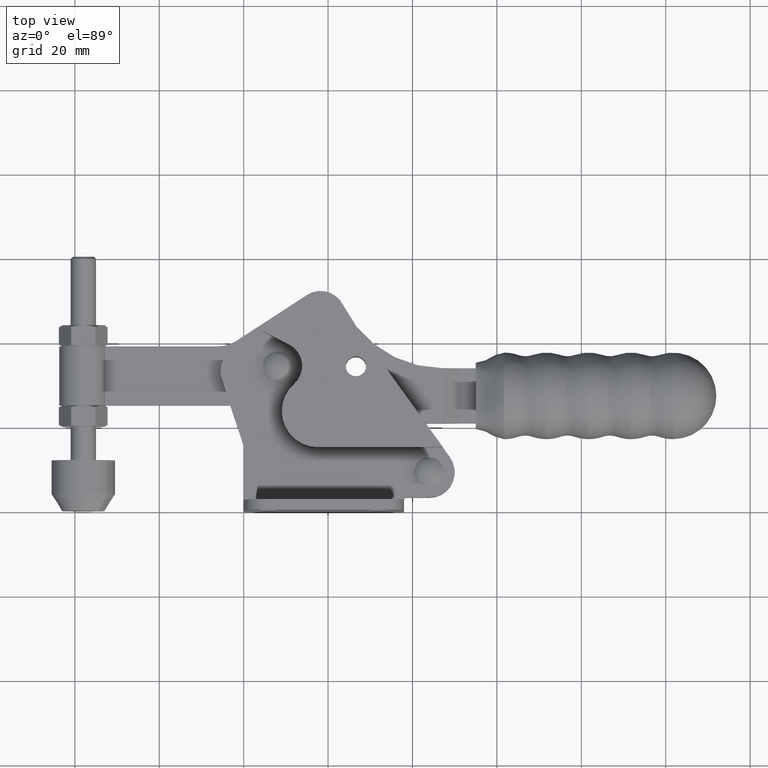
[diagram: clean part render]
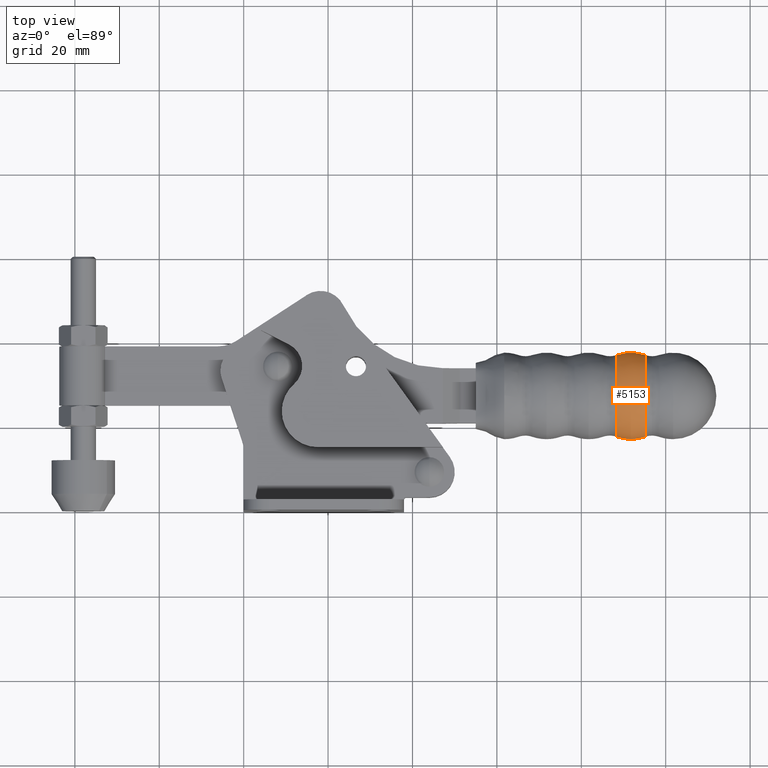
[diagram: same view with one face highlighted and labeled with its STEP entity id]
A machine part, top view. The second image highlights one B-rep face of the part: STEP entity #5153.
In plain terms, the highlighted spherical surface has radius 10.25 mm.
Its self-contained STEP definition (entity closure, byte-faithful):
#245 = FACE_OUTER_BOUND ( 'NONE', #5498, .T. ) ;
#1037 = DIRECTION ( 'NONE',  ( 4.061791553506669500E-015, -1.000000000000000000, 7.887774916776290400E-018 ) ) ;
#1120 = CARTESIAN_POINT ( 'NONE',  ( 88.38934426229521100, 17.61658670650506100, 1.276511214442528400E-016 ) ) ;
#1197 = DIRECTION ( 'NONE',  ( -1.000000000000000000, -1.049748105022090300E-014, 8.262005678075808700E-032 ) ) ;
#1975 = AXIS2_PLACEMENT_3D ( 'NONE', #6079, #1197, #6894 ) ;
#2670 = CIRCLE ( 'NONE', #4083, 10.25000000000000200 ) ;
#2880 = ORIENTED_EDGE ( 'NONE', *, *, #5569, .T. ) ;
#3114 = CARTESIAN_POINT ( 'NONE',  ( 91.75000000000002800, 27.29999999999985100, 5.127053695904666600E-017 ) ) ;
#3157 = ORIENTED_EDGE ( 'NONE', *, *, #4307, .F. ) ;
#3591 = AXIS2_PLACEMENT_3D ( 'NONE', #6385, #8372, #1037 ) ;
#3759 = EDGE_CURVE ( 'NONE', #5430, #8515, #6379, .T. ) ;
#3922 = DIRECTION ( 'NONE',  ( 0.0000000000000000000, -1.000000000000000000, -1.145769049979590400E-016 ) ) ;
#3984 = DIRECTION ( 'NONE',  ( 1.000000000000000000, 1.049748105022090600E-014, -8.262005678075810900E-032 ) ) ;
#4083 = AXIS2_PLACEMENT_3D ( 'NONE', #4169, #4236, #5048 ) ;
#4169 = CARTESIAN_POINT ( 'NONE',  ( 91.75000000000002800, 27.29999999999985100, 5.127053695904666600E-017 ) ) ;
#4230 = CARTESIAN_POINT ( 'NONE',  ( 95.11065573770484600, 36.98341329349464200, 1.160766061943770900E-015 ) ) ;
#4236 = DIRECTION ( 'NONE',  ( 1.817109365087897700E-034, -7.887774916776290400E-018, -1.000000000000000000 ) ) ;
#4307 = EDGE_CURVE ( 'NONE', #5374, #8515, #2670, .T. ) ;
#4703 = ORIENTED_EDGE ( 'NONE', *, *, #7079, .T. ) ;
#5048 = DIRECTION ( 'NONE',  ( 0.0000000000000000000, 1.000000000000000000, -7.887774916776290400E-018 ) ) ;
#5153 = ADVANCED_FACE ( 'NONE', ( #245 ), #5981, .T. ) ;
#5374 = VERTEX_POINT ( 'NONE', #9444 ) ;
#5430 = VERTEX_POINT ( 'NONE', #9506 ) ;
#5498 = EDGE_LOOP ( 'NONE', ( #4703, #2880, #8450, #3157 ) ) ;
#5569 = EDGE_CURVE ( 'NONE', #8458, #5430, #8145, .T. ) ;
#5981 = SPHERICAL_SURFACE ( 'NONE', #3591, 10.25000000000000200 ) ;
#6079 = CARTESIAN_POINT ( 'NONE',  ( 95.11065573770494600, 27.29999999999988700, 5.127053695904638800E-017 ) ) ;
#6379 = CIRCLE ( 'NONE', #9332, 9.683413293494759000 ) ;
#6385 = CARTESIAN_POINT ( 'NONE',  ( 91.75000000000002800, 27.29999999999985100, 5.127053695904666600E-017 ) ) ;
#6894 = DIRECTION ( 'NONE',  ( 1.003205292497038400E-014, -1.000000000000000000, 7.887774916776290400E-018 ) ) ;
#7079 = EDGE_CURVE ( 'NONE', #5374, #8458, #10407, .T. ) ;
#8145 = CIRCLE ( 'NONE', #9986, 10.25000000000000200 ) ;
#8372 = DIRECTION ( 'NONE',  ( -1.817109365087872700E-034, 7.887774916776290400E-018, 1.000000000000000000 ) ) ;
#8450 = ORIENTED_EDGE ( 'NONE', *, *, #3759, .T. ) ;
#8458 = VERTEX_POINT ( 'NONE', #4230 ) ;
#8515 = VERTEX_POINT ( 'NONE', #1120 ) ;
#8833 = DIRECTION ( 'NONE',  ( 4.302226566104022700E-031, -1.145769049979590400E-016, 1.000000000000000000 ) ) ;
#9332 = AXIS2_PLACEMENT_3D ( 'NONE', #10253, #3984, #10557 ) ;
#9444 = CARTESIAN_POINT ( 'NONE',  ( 95.11065573770504500, 17.61658670650512800, 1.276511214442524500E-016 ) ) ;
#9506 = CARTESIAN_POINT ( 'NONE',  ( 88.38934426229501200, 36.98341329349457900, 1.160766061943766900E-015 ) ) ;
#9986 = AXIS2_PLACEMENT_3D ( 'NONE', #3114, #8833, #3922 ) ;
#10253 = CARTESIAN_POINT ( 'NONE',  ( 88.38934426229511100, 27.29999999999981600, 5.127053695904694300E-017 ) ) ;
#10407 = CIRCLE ( 'NONE', #1975, 9.683413293494759000 ) ;
#10557 = DIRECTION ( 'NONE',  ( -1.003205292497038400E-014, 1.000000000000000000, -7.887774916776290400E-018 ) ) ;